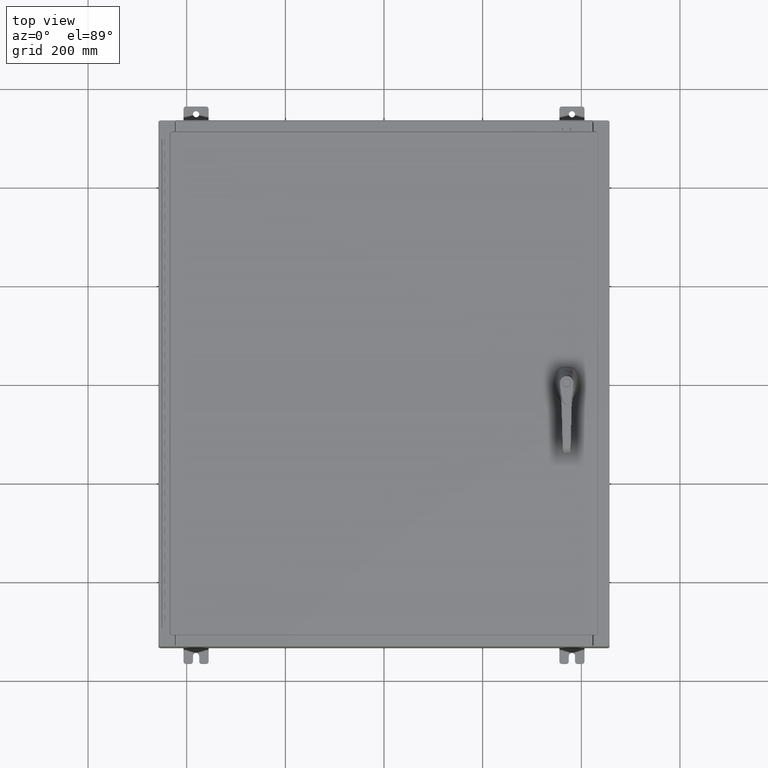
[diagram: clean part render]
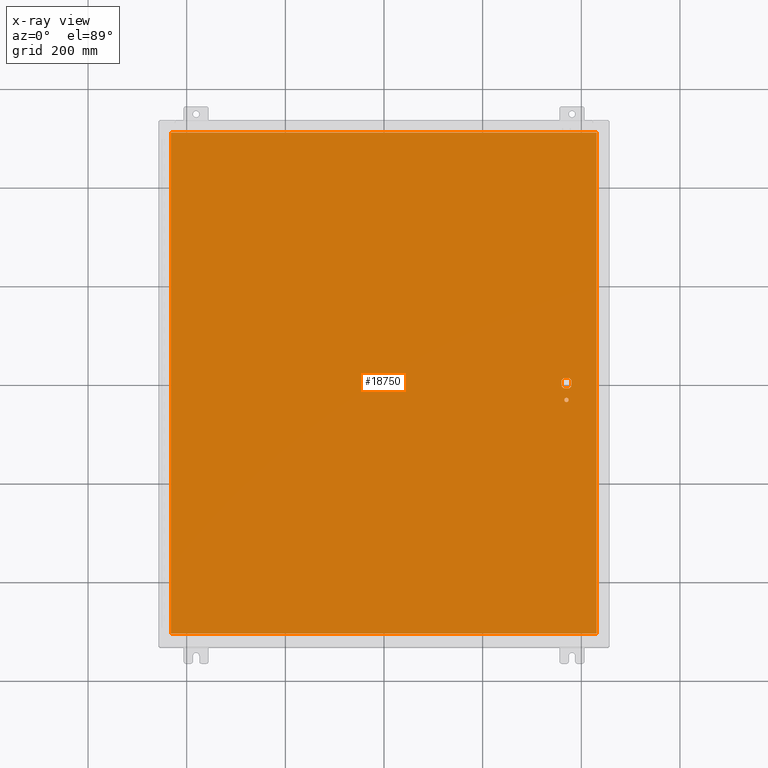
[diagram: x-ray — body ghosted, one internal face saturated and labeled with its STEP entity id]
A machine part, top view, then the same camera in x-ray: the body is ghosted and one INTERNAL B-rep face — a face not visible from any outside direction — is saturated and labeled: STEP entity #18750.
In plain terms, the highlighted planar face has unit normal (0, 0, -1).
Its self-contained STEP definition (entity closure, byte-faithful):
#56 = DIRECTION ( 'NONE',  ( -0.0000000000000000000, -0.0000000000000000000, 1.000000000000000000 ) ) ;
#1902 = CARTESIAN_POINT ( 'NONE',  ( -16.99029999999999800, -20.00630000000000700, -0.07469999999999804600 ) ) ;
#2774 = CARTESIAN_POINT ( 'NONE',  ( 0.0000000000000000000, 0.0000000000000000000, -0.07470000000000000300 ) ) ;
#4565 = CARTESIAN_POINT ( 'NONE',  ( 14.57799999999999900, 0.0000000000000000000, -0.07470000000000003000 ) ) ;
#6527 = CARTESIAN_POINT ( 'NONE',  ( 16.99029999999999800, 20.00630000000000300, -0.07470000000000000300 ) ) ;
#7077 = EDGE_CURVE ( 'NONE', #21630, #118843, #35618, .T. ) ;
#7610 = ORIENTED_EDGE ( 'NONE', *, *, #121775, .T. ) ;
#7787 = CARTESIAN_POINT ( 'NONE',  ( 16.99029999999999800, -20.00630000000000300, -0.07470000000000019700 ) ) ;
#8302 = LINE ( 'NONE', #63332, #84151 ) ;
#8971 = VERTEX_POINT ( 'NONE', #83392 ) ;
#11885 = DIRECTION ( 'NONE',  ( 1.000000000000000000, -0.0000000000000000000, -0.0000000000000000000 ) ) ;
#12530 = ORIENTED_EDGE ( 'NONE', *, *, #71736, .T. ) ;
#12747 = DIRECTION ( 'NONE',  ( -1.000000000000000000, 0.0000000000000000000, -0.0000000000000000000 ) ) ;
#12855 = DIRECTION ( 'NONE',  ( -0.0000000000000000000, -0.0000000000000000000, 1.000000000000000000 ) ) ;
#13526 = ORIENTED_EDGE ( 'NONE', *, *, #51804, .T. ) ;
#13636 = DIRECTION ( 'NONE',  ( -1.000000000000000000, -0.0000000000000000000, -0.0000000000000000000 ) ) ;
#14507 = DIRECTION ( 'NONE',  ( -1.000000000000000000, -5.329070518200740300E-015, 0.0000000000000000000 ) ) ;
#15335 = ORIENTED_EDGE ( 'NONE', *, *, #84692, .T. ) ;
#17990 = VECTOR ( 'NONE', #11885, 39.37007874015748100 ) ;
#18750 = ADVANCED_FACE ( 'NONE', ( #120428, #97119, #70760 ), #121487, .T. ) ;
#21511 = VECTOR ( 'NONE', #85423, 39.37007874015748100 ) ;
#21630 = VERTEX_POINT ( 'NONE', #48454 ) ;
#23962 = VERTEX_POINT ( 'NONE', #104616 ) ;
#24859 = CARTESIAN_POINT ( 'NONE',  ( 14.98099999999992700, 0.2002273707563075900, -0.07470000000000003000 ) ) ;
#25467 = CARTESIAN_POINT ( 'NONE',  ( -16.99029999999999400, 20.00630000000000300, -0.07470000000000019700 ) ) ;
#26105 = EDGE_CURVE ( 'NONE', #23962, #86518, #122094, .T. ) ;
#26719 = CARTESIAN_POINT ( 'NONE',  ( 14.17500000000007400, 0.0000000000000000000, -0.07470000000000003000 ) ) ;
#27156 = DIRECTION ( 'NONE',  ( 0.0000000000000000000, -1.000000000000000000, 0.0000000000000000000 ) ) ;
#28003 = AXIS2_PLACEMENT_3D ( 'NONE', #106489, #47165, #116478 ) ;
#28224 = CARTESIAN_POINT ( 'NONE',  ( 14.37777262924369000, 0.4029999999999252000, -0.07470000000000003000 ) ) ;
#28768 = EDGE_LOOP ( 'NONE', ( #103014, #74863, #114882, #93554 ) ) ;
#28896 = LINE ( 'NONE', #7787, #81516 ) ;
#29028 = EDGE_LOOP ( 'NONE', ( #69328, #81318 ) ) ;
#31372 = VERTEX_POINT ( 'NONE', #55995 ) ;
#35402 = DIRECTION ( 'NONE',  ( 0.0000000000000000000, -1.000000000000000000, 0.0000000000000000000 ) ) ;
#35618 = CIRCLE ( 'NONE', #51733, 0.4499999999999168000 ) ;
#38241 = LINE ( 'NONE', #51254, #90976 ) ;
#38461 = CARTESIAN_POINT ( 'NONE',  ( 14.17500000000007400, 0.2002273707563075900, -0.07470000000000003000 ) ) ;
#38596 = AXIS2_PLACEMENT_3D ( 'NONE', #59321, #56, #69274 ) ;
#38936 = CIRCLE ( 'NONE', #42376, 0.4499999999999168000 ) ;
#39841 = VERTEX_POINT ( 'NONE', #67657 ) ;
#41288 = DIRECTION ( 'NONE',  ( -0.0000000000000000000, -0.0000000000000000000, 1.000000000000000000 ) ) ;
#41578 = CARTESIAN_POINT ( 'NONE',  ( 0.0000000000000000000, -0.4029999999999252000, -0.07470000000000003000 ) ) ;
#42376 = AXIS2_PLACEMENT_3D ( 'NONE', #4565, #73818, #14507 ) ;
#43001 = VECTOR ( 'NONE', #35402, 39.37007874015748100 ) ;
#44090 = EDGE_CURVE ( 'NONE', #39841, #100730, #125478, .T. ) ;
#44345 = LINE ( 'NONE', #1902, #17990 ) ;
#44714 = DIRECTION ( 'NONE',  ( 5.457491617345625800E-015, -1.000000000000000000, 0.0000000000000000000 ) ) ;
#47165 = DIRECTION ( 'NONE',  ( -0.0000000000000000000, -0.0000000000000000000, 1.000000000000000000 ) ) ;
#47834 = LINE ( 'NONE', #41578, #21511 ) ;
#48349 = AXIS2_PLACEMENT_3D ( 'NONE', #2774, #72027, #12747 ) ;
#48454 = CARTESIAN_POINT ( 'NONE',  ( 14.17500000000007400, -0.2002273707563079800, -0.07470000000000003000 ) ) ;
#49314 = VECTOR ( 'NONE', #44714, 39.37007874015748100 ) ;
#51254 = CARTESIAN_POINT ( 'NONE',  ( 0.0000000000000000000, 0.4029999999999252000, -0.07470000000000003000 ) ) ;
#51733 = AXIS2_PLACEMENT_3D ( 'NONE', #72137, #12855, #82095 ) ;
#51804 = EDGE_CURVE ( 'NONE', #58293, #100783, #38936, .T. ) ;
#55129 = EDGE_CURVE ( 'NONE', #63383, #31372, #101970, .T. ) ;
#55995 = CARTESIAN_POINT ( 'NONE',  ( 14.98099999999992700, -0.2002273707563067300, -0.07470000000000003000 ) ) ;
#56850 = DIRECTION ( 'NONE',  ( -0.0000000000000000000, -0.0000000000000000000, 1.000000000000000000 ) ) ;
#58293 = VERTEX_POINT ( 'NONE', #28224 ) ;
#58900 = CARTESIAN_POINT ( 'NONE',  ( 14.37777262924369000, -0.4029999999999250300, -0.07470000000000003000 ) ) ;
#59321 = CARTESIAN_POINT ( 'NONE',  ( 14.57799999999999900, -1.338000000000000100, -0.07470000000000003000 ) ) ;
#63332 = CARTESIAN_POINT ( 'NONE',  ( 16.99029999999999800, 20.00630000000000700, -0.07469999999999804600 ) ) ;
#63383 = VERTEX_POINT ( 'NONE', #24859 ) ;
#64567 = CARTESIAN_POINT ( 'NONE',  ( 14.98099999999992700, 8.175868191945441800E-014, -0.07470000000000003000 ) ) ;
#66538 = EDGE_CURVE ( 'NONE', #63383, #120498, #101742, .T. ) ;
#67023 = DIRECTION ( 'NONE',  ( 0.0000000000000000000, 1.000000000000000000, 0.0000000000000000000 ) ) ;
#67171 = ORIENTED_EDGE ( 'NONE', *, *, #66538, .T. ) ;
#67657 = CARTESIAN_POINT ( 'NONE',  ( 14.40649999999999800, -1.338000000000000100, -0.07470000000000003000 ) ) ;
#69274 = DIRECTION ( 'NONE',  ( -1.000000000000000000, 0.0000000000000000000, 0.0000000000000000000 ) ) ;
#69328 = ORIENTED_EDGE ( 'NONE', *, *, #89095, .T. ) ;
#70660 = AXIS2_PLACEMENT_3D ( 'NONE', #116234, #56850, #126191 ) ;
#70760 = FACE_BOUND ( 'NONE', #95331, .T. ) ;
#71736 = EDGE_CURVE ( 'NONE', #118843, #8971, #47834, .T. ) ;
#72027 = DIRECTION ( 'NONE',  ( 0.0000000000000000000, 0.0000000000000000000, -1.000000000000000000 ) ) ;
#72137 = CARTESIAN_POINT ( 'NONE',  ( 14.57799999999999900, 0.0000000000000000000, -0.07470000000000003000 ) ) ;
#73527 = VERTEX_POINT ( 'NONE', #6527 ) ;
#73818 = DIRECTION ( 'NONE',  ( -0.0000000000000000000, -0.0000000000000000000, 1.000000000000000000 ) ) ;
#74220 = ORIENTED_EDGE ( 'NONE', *, *, #55129, .F. ) ;
#74863 = ORIENTED_EDGE ( 'NONE', *, *, #121788, .F. ) ;
#79818 = CARTESIAN_POINT ( 'NONE',  ( -16.99029999999999800, -20.00630000000000300, -0.07470000000000000300 ) ) ;
#81251 = CARTESIAN_POINT ( 'NONE',  ( 14.77822737075630900, 0.4029999999999250300, -0.07470000000000003000 ) ) ;
#81318 = ORIENTED_EDGE ( 'NONE', *, *, #44090, .T. ) ;
#81516 = VECTOR ( 'NONE', #67023, 39.37007874015748100 ) ;
#82095 = DIRECTION ( 'NONE',  ( -1.000000000000000000, -1.776356839400246700E-015, 0.0000000000000000000 ) ) ;
#83392 = CARTESIAN_POINT ( 'NONE',  ( 14.77822737075630900, -0.4029999999999252000, -0.07470000000000003000 ) ) ;
#84151 = VECTOR ( 'NONE', #13636, 39.37007874015748100 ) ;
#84692 = EDGE_CURVE ( 'NONE', #120498, #58293, #38241, .T. ) ;
#85423 = DIRECTION ( 'NONE',  ( 1.000000000000000000, 0.0000000000000000000, 0.0000000000000000000 ) ) ;
#85942 = EDGE_CURVE ( 'NONE', #100783, #21630, #92343, .T. ) ;
#86518 = VERTEX_POINT ( 'NONE', #79818 ) ;
#87127 = AXIS2_PLACEMENT_3D ( 'NONE', #100612, #41288, #110556 ) ;
#89095 = EDGE_CURVE ( 'NONE', #100730, #39841, #127529, .T. ) ;
#90976 = VECTOR ( 'NONE', #120621, 39.37007874015748100 ) ;
#92343 = LINE ( 'NONE', #26719, #121846 ) ;
#93554 = ORIENTED_EDGE ( 'NONE', *, *, #127240, .F. ) ;
#95331 = EDGE_LOOP ( 'NONE', ( #7610, #74220, #67171, #15335, #13526, #121365, #102800, #12530 ) ) ;
#97119 = FACE_OUTER_BOUND ( 'NONE', #28768, .T. ) ;
#100612 = CARTESIAN_POINT ( 'NONE',  ( 14.57799999999999900, 0.0000000000000000000, -0.07470000000000003000 ) ) ;
#100730 = VERTEX_POINT ( 'NONE', #127288 ) ;
#100783 = VERTEX_POINT ( 'NONE', #38461 ) ;
#101742 = CIRCLE ( 'NONE', #70660, 0.4499999999999168000 ) ;
#101970 = LINE ( 'NONE', #64567, #49314 ) ;
#102800 = ORIENTED_EDGE ( 'NONE', *, *, #7077, .T. ) ;
#103014 = ORIENTED_EDGE ( 'NONE', *, *, #107366, .F. ) ;
#104616 = CARTESIAN_POINT ( 'NONE',  ( -16.99029999999999400, 20.00630000000000300, -0.07470000000000000300 ) ) ;
#106489 = CARTESIAN_POINT ( 'NONE',  ( 14.57799999999999900, -1.338000000000000100, -0.07470000000000003000 ) ) ;
#107366 = EDGE_CURVE ( 'NONE', #115509, #73527, #28896, .T. ) ;
#110037 = CARTESIAN_POINT ( 'NONE',  ( 16.99029999999999800, -20.00630000000000300, -0.07470000000000000300 ) ) ;
#110556 = DIRECTION ( 'NONE',  ( -1.000000000000000000, -1.776356839400246700E-015, 0.0000000000000000000 ) ) ;
#114882 = ORIENTED_EDGE ( 'NONE', *, *, #26105, .F. ) ;
#115509 = VERTEX_POINT ( 'NONE', #110037 ) ;
#116234 = CARTESIAN_POINT ( 'NONE',  ( 14.57799999999999900, 0.0000000000000000000, -0.07470000000000003000 ) ) ;
#116478 = DIRECTION ( 'NONE',  ( -1.000000000000000000, 0.0000000000000000000, 0.0000000000000000000 ) ) ;
#118843 = VERTEX_POINT ( 'NONE', #58900 ) ;
#120428 = FACE_BOUND ( 'NONE', #29028, .T. ) ;
#120498 = VERTEX_POINT ( 'NONE', #81251 ) ;
#120621 = DIRECTION ( 'NONE',  ( -1.000000000000000000, 0.0000000000000000000, 0.0000000000000000000 ) ) ;
#121365 = ORIENTED_EDGE ( 'NONE', *, *, #85942, .T. ) ;
#121487 = PLANE ( 'NONE',  #48349 ) ;
#121775 = EDGE_CURVE ( 'NONE', #8971, #31372, #126489, .T. ) ;
#121788 = EDGE_CURVE ( 'NONE', #86518, #115509, #44345, .T. ) ;
#121846 = VECTOR ( 'NONE', #27156, 39.37007874015748100 ) ;
#122094 = LINE ( 'NONE', #25467, #43001 ) ;
#125478 = CIRCLE ( 'NONE', #38596, 0.1715000000000011500 ) ;
#126191 = DIRECTION ( 'NONE',  ( -1.000000000000000000, -5.329070518200740300E-015, 0.0000000000000000000 ) ) ;
#126489 = CIRCLE ( 'NONE', #87127, 0.4499999999999168000 ) ;
#127240 = EDGE_CURVE ( 'NONE', #73527, #23962, #8302, .T. ) ;
#127288 = CARTESIAN_POINT ( 'NONE',  ( 14.74950000000000100, -1.338000000000000100, -0.07470000000000003000 ) ) ;
#127529 = CIRCLE ( 'NONE', #28003, 0.1715000000000011500 ) ;